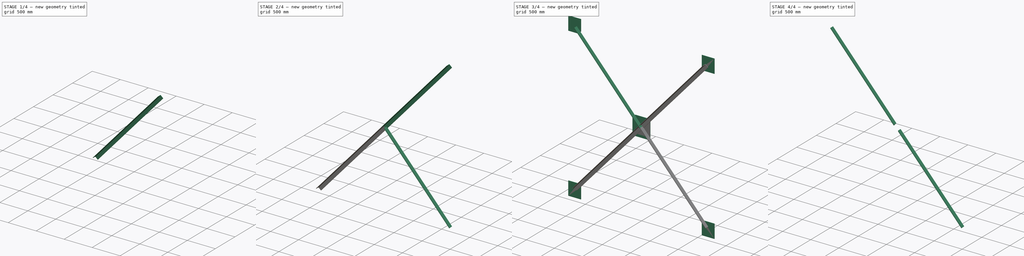
[diagram: build sequence overview — one tinted view per stage of 4, left to right]
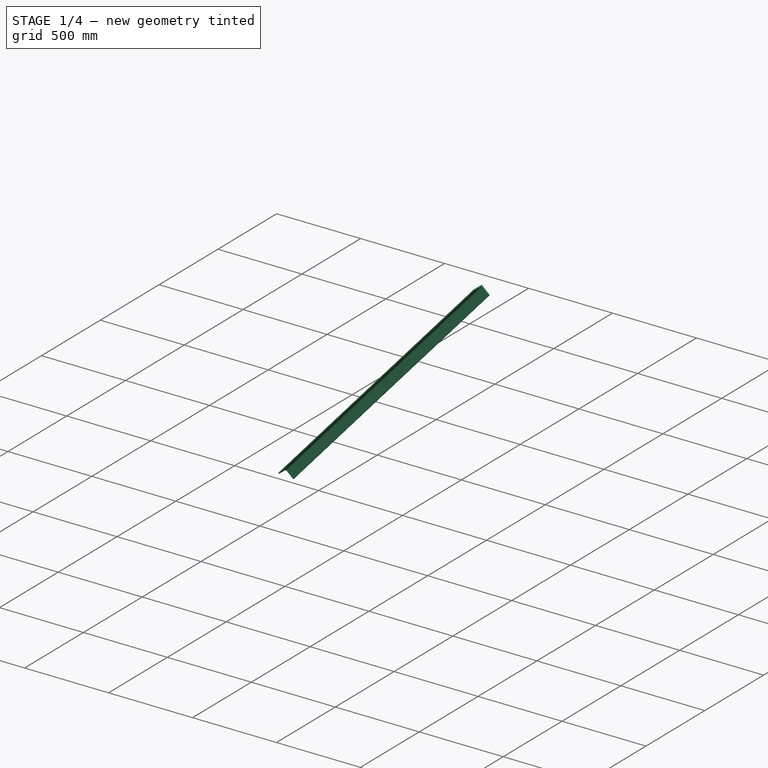
[diagram: stage 1 of 4 — iso view after this stage's code; geometry added in this stage tinted green]
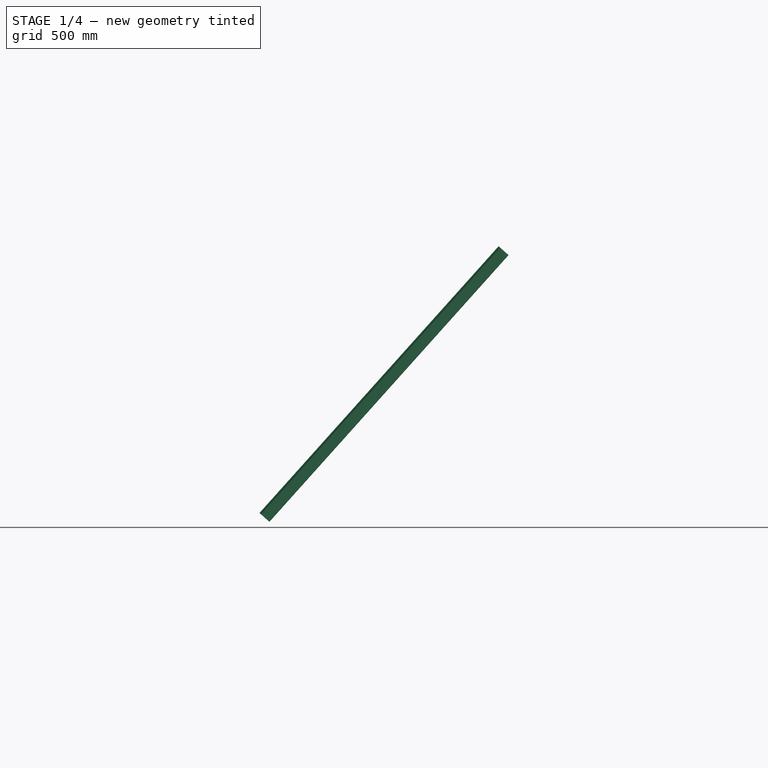
[diagram: stage 1 of 4 — front view after this stage's code; geometry added in this stage tinted green]
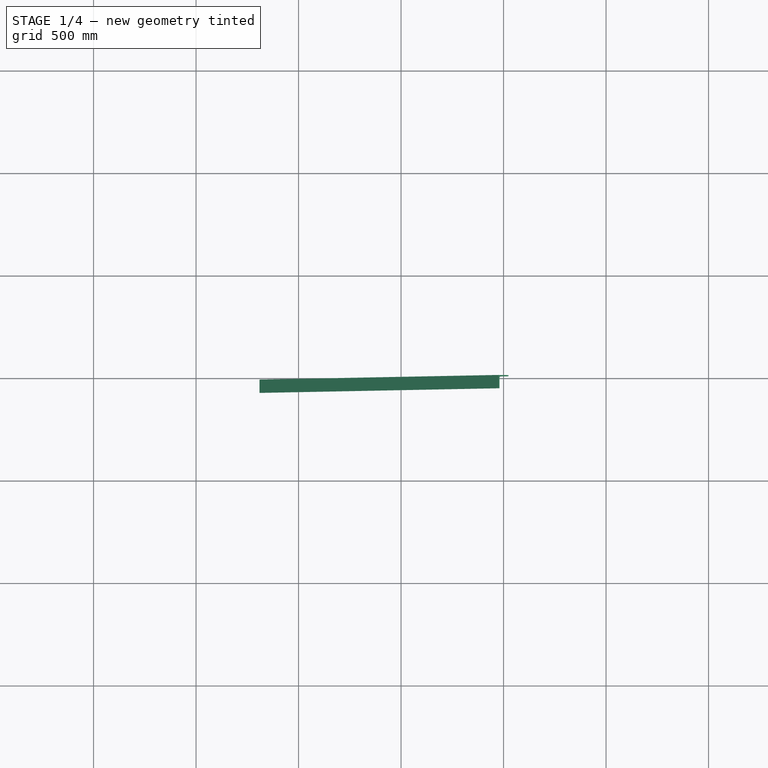
[diagram: stage 1 of 4 — top view after this stage's code; geometry added in this stage tinted green]
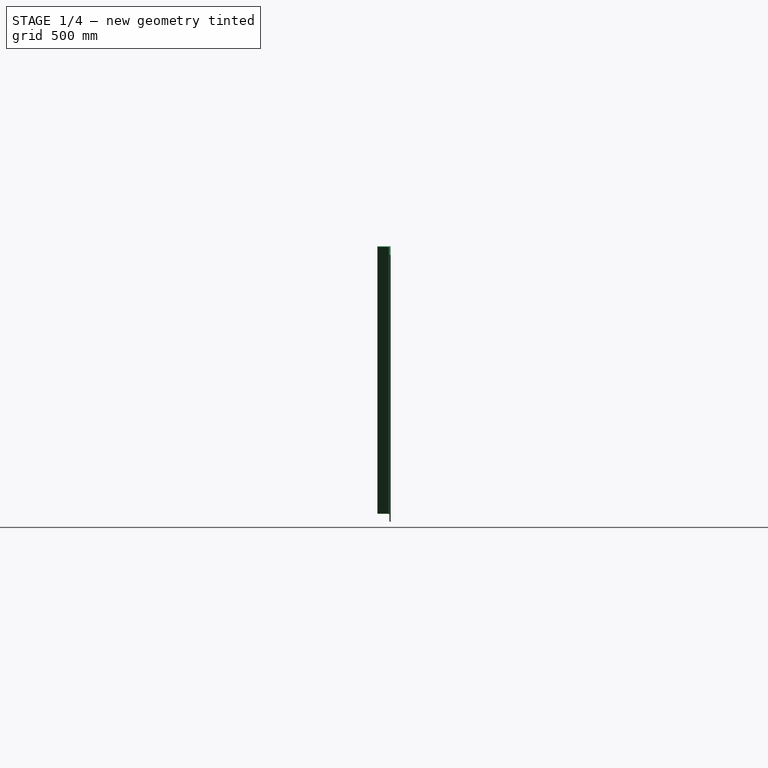
[diagram: stage 1 of 4 — right view after this stage's code; geometry added in this stage tinted green]
FCSTD DOCUMENT  (FreeCAD 0.21R33771 (Git))
Label: steelBrace
License: All rights reserved
LicenseURL: http://en.wikipedia.org/wiki/All_rights_reserved
objects: Sketcher::SketchObject×2, Part::Extrusion×2, Part::FeaturePython×2, Part::Mirroring×2, Part::MultiFuse×2, Spreadsheet::Sheet×1, Part::Cut×1
note: 11 computed .brp shape members not serialized (recipe doc carries the construction recipe); baked Part::Feature solids carry a one-line shape summary decoded from their .brp

FEATURE [Part::FeaturePython] AngleSteel001  # WARN: FeaturePython — macro-defined, semantics opaque (R4)
  A = 65
  B = 65
  L = 1747.43
  Placement = pos=(0,-38.5,0) rot=(0,1,0;0.730907rad)
  Solid = true
  g0 = 7.85
  mass = 10.3242
  sface = 1
  size = 8
  standard = SS_Equal
  t = 6
  expr: .Placement.Rotation.Angle = 90 ° - Spreadsheet.k0
  expr: L = Spreadsheet.C0 / 2 - Spreadsheet.La + 100
FEATURE [Part::Mirroring] Part__Mirroring  label="AngleSteel001 (Mirror #2)"
  Base = (0,0,0)
  Normal = (0,0,1)
  Placement = pos=(0,0,0) rot=(0,1,0;1.46181rad)
  Source = -> AngleSteel001
  expr: .Placement.Rotation.Angle = (90 ° - Spreadsheet.k0) * 2
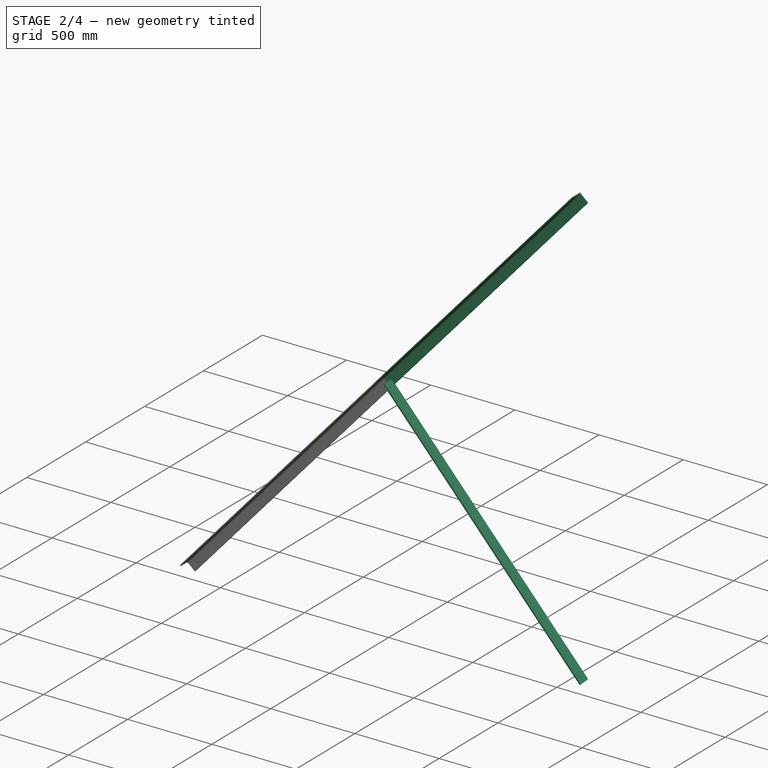
[diagram: stage 2 of 4 — iso view after this stage's code; geometry added in this stage tinted green]
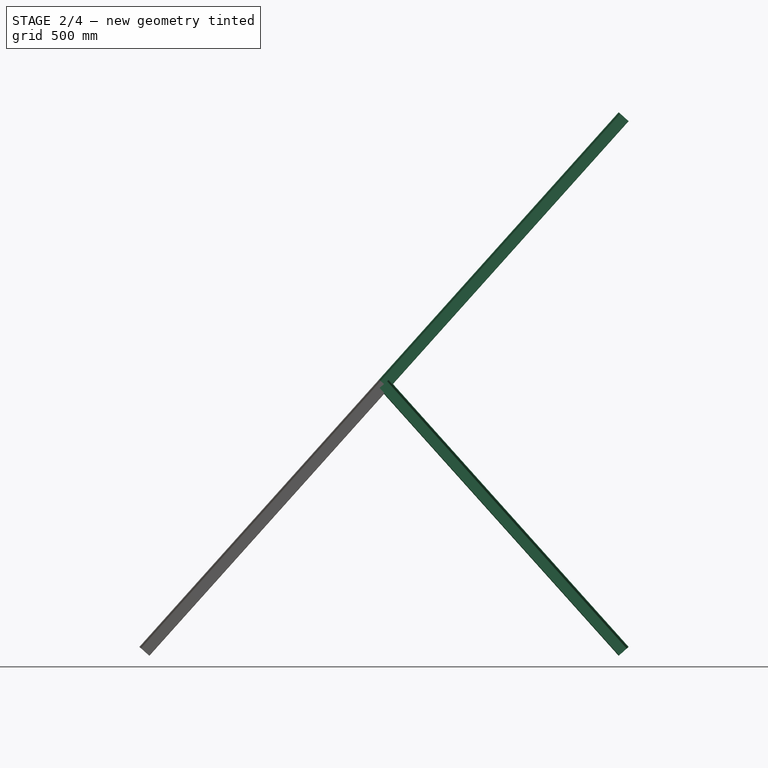
[diagram: stage 2 of 4 — front view after this stage's code; geometry added in this stage tinted green]
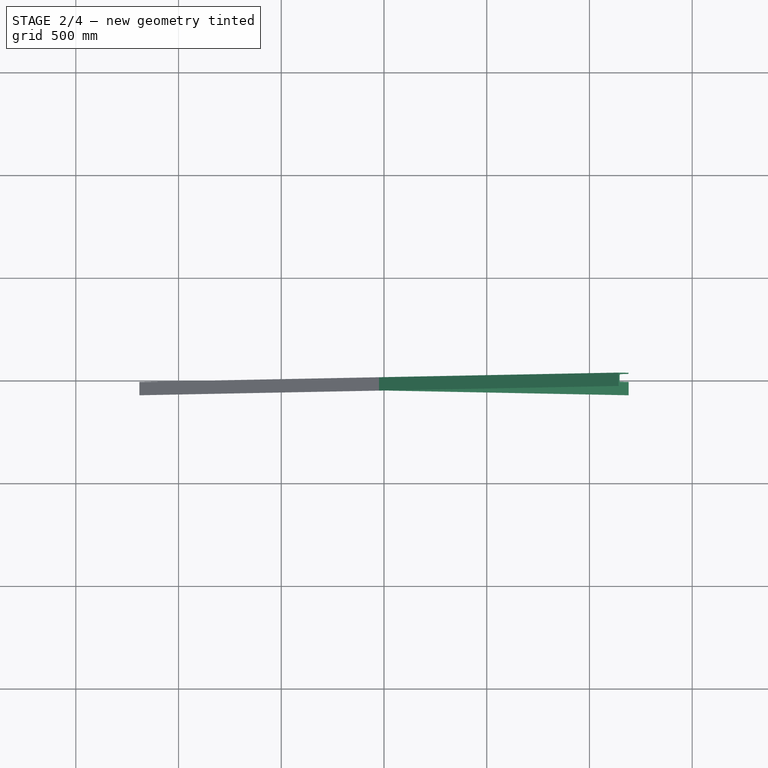
[diagram: stage 2 of 4 — top view after this stage's code; geometry added in this stage tinted green]
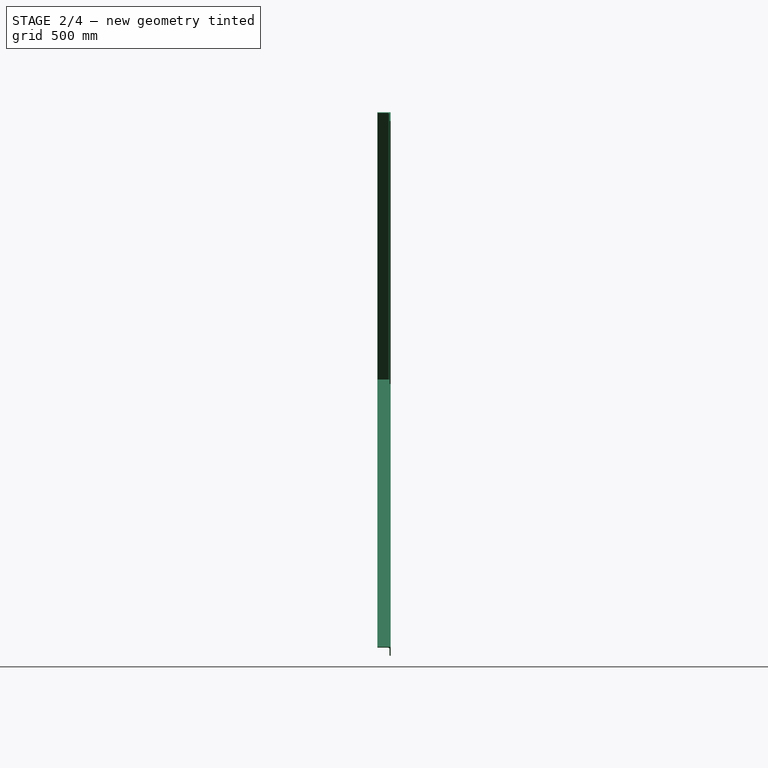
[diagram: stage 2 of 4 — right view after this stage's code; geometry added in this stage tinted green]
FEATURE [Spreadsheet::Sheet] Spreadsheet
  cells = A2='W0; B2(W0)=2600; A3='H0; B3(H0)=2900; A4='C0; B4(C0)==sqrt(W0 ^ 2 + H0 ^ 2); A5='La; B5(La)=300; A6='k0; B6(k0)==atan(H0 / W0); A11='B0; B11(B0)=75; A13='20x20x3; B13=20; A14='25x25x3; B14=25; A15='30x30x3; B15=30; A16='30x30x5; B16=30; A17='40x40x3; B17=40; A18='40x40x5; B18=40; A19='50x50x4; B19=50; A20='50x50x6; B20=50; A21='65x65x8; B21=65; A22='65x65x9; B22=65; A23='75x75x6; B23=75; A24='75x75x9; B24=75; A25='75x75x12; B25=75; A26='90x90x7; B26=90; A27='90x90x10; B27=90; A28='90x90x13; B28=90; A29='100x100x7; B29=100; A30='100x100x10; B30=100; A31='100x100x13; B31=100; A32='130x130x9; B32=130; A33='130x130x12; B33=130; A34='130x130x15; B34=130; A35='150x150x12; B35=150; A36='150x150x15; B36=150; A37='150x150x19; B37=150; A38='200x200x15; B38=200; A39='200x200x20; B39=200; A40='200x200x25; B40=200
FEATURE [Part::FeaturePython] AngleSteel  # WARN: FeaturePython — macro-defined, semantics opaque (R4)
  A = 65
  B = 65
  L = 1747.43
  Placement = pos=(0,-38.5,0) rot=(0,1,0;2.41069rad)
  Solid = true
  g0 = 7.85
  mass = 10.3242
  sface = 0
  size = 8
  standard = SS_Equal
  t = 6
  expr: .Placement.Rotation.Angle = Spreadsheet.k0 + 90 °
  expr: L = Spreadsheet.C0 / 2 - Spreadsheet.La + 100
FEATURE [Part::MultiFuse] Fusion001  label="beamA"
  Shapes = -> [Part__Mirroring,AngleSteel001]
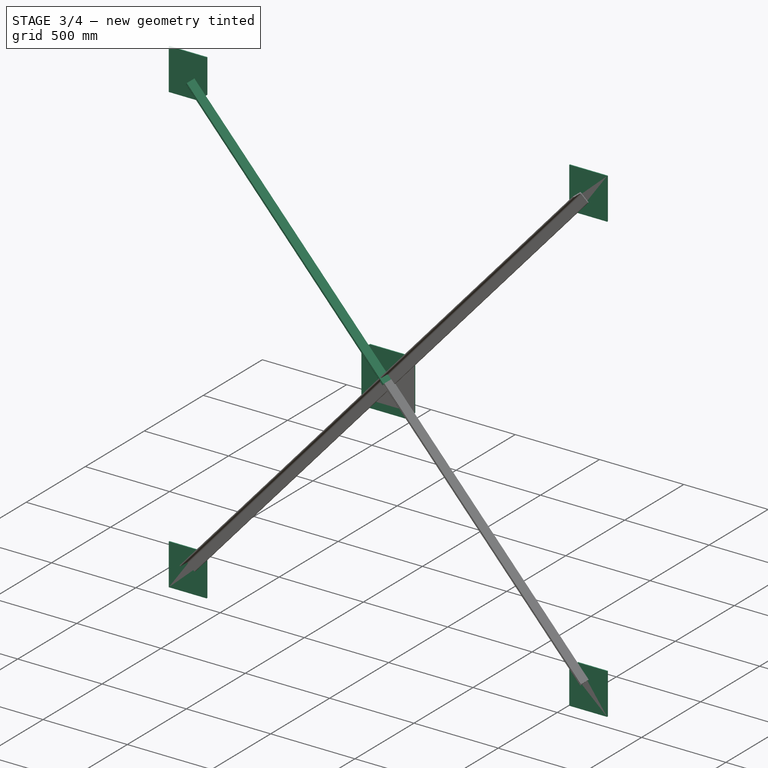
[diagram: stage 3 of 4 — iso view after this stage's code; geometry added in this stage tinted green]
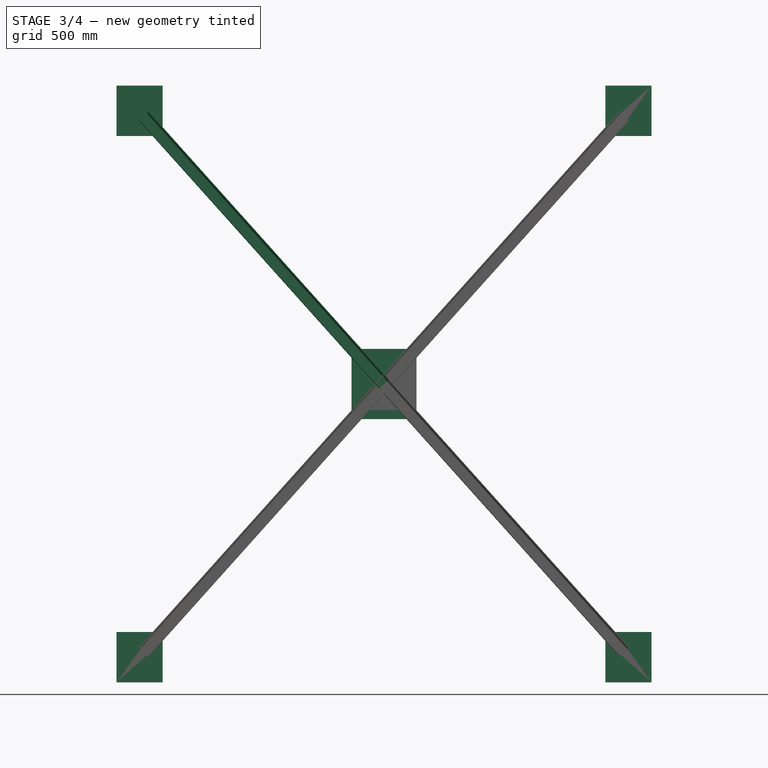
[diagram: stage 3 of 4 — front view after this stage's code; geometry added in this stage tinted green]
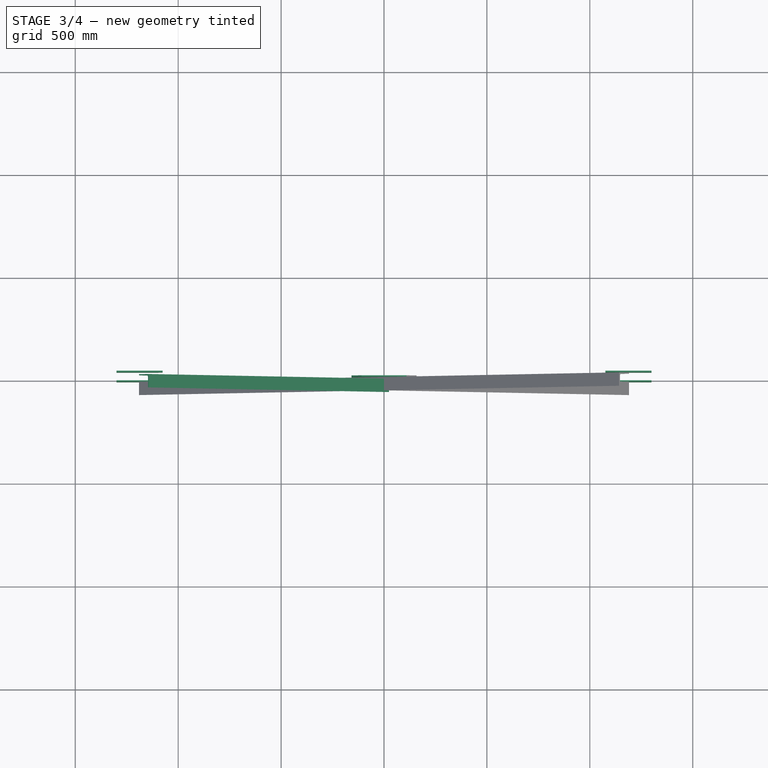
[diagram: stage 3 of 4 — top view after this stage's code; geometry added in this stage tinted green]
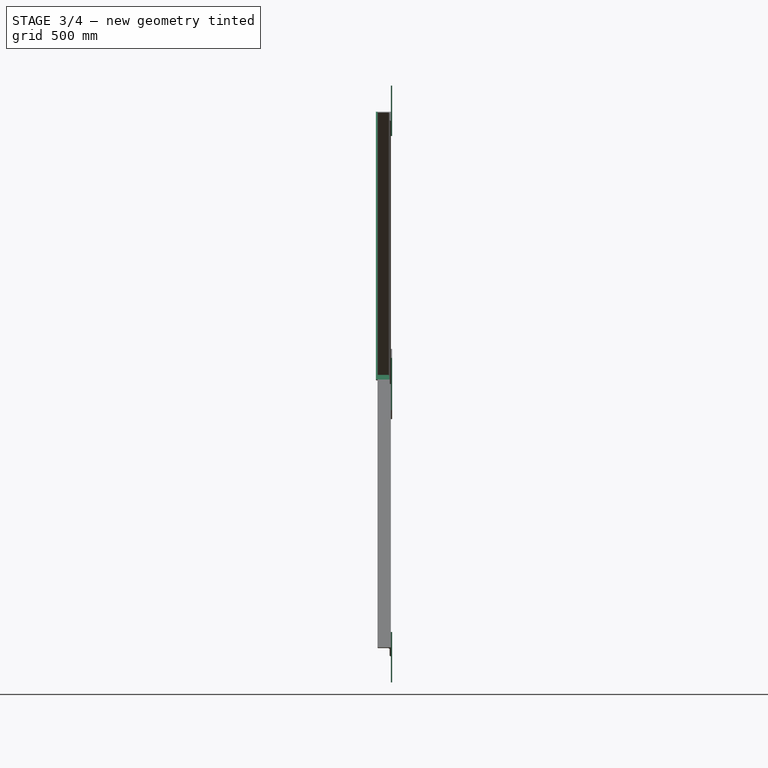
[diagram: stage 3 of 4 — right view after this stage's code; geometry added in this stage tinted green]
FEATURE [Sketcher::SketchObject] Sketch
  FullyConstrained = true
  MapMode = 5
  Placement = pos=(0,0,0) rot=(1,0,0;1.5708rad)
  expr: Constraints[10] = Spreadsheet.H0
  expr: Constraints[11] = Spreadsheet.W0
  expr: Constraints[27] = Spreadsheet.La
  expr: Constraints[40] = Spreadsheet.La
  expr: Constraints[62] = Spreadsheet.La
  expr: Constraints[67] = Spreadsheet.La
  sketch-geometry (36):
    g0: LineSegment StartX=-1300 StartY=-1450 StartZ=0 EndX=-1300 EndY=1450 EndZ=0
    g1: LineSegment StartX=-1300 StartY=1450 StartZ=0 EndX=1300 EndY=1450 EndZ=0
    g2: LineSegment StartX=1300 StartY=1450 StartZ=0 EndX=1300 EndY=-1450 EndZ=0
    g3: LineSegment StartX=1300 StartY=-1450 StartZ=0 EndX=-1300 EndY=-1450 EndZ=0
    g4: GeomPoint X=0 Y=0 Z=0
    g5: LineSegment StartX=-1300 StartY=-1450 StartZ=0 EndX=1300 EndY=1450 EndZ=0
    g6: LineSegment StartX=-1300 StartY=1450 StartZ=0 EndX=1300 EndY=-1450 EndZ=0
    g7: LineSegment StartX=-1300 StartY=1450 StartZ=0 EndX=-1075.54 EndY=1450 EndZ=0
    g8: LineSegment StartX=-1075.54 StartY=1450 StartZ=0 EndX=-1075.54 EndY=1248.32 EndZ=0
    g9: LineSegment StartX=-1075.54 StartY=1248.32 StartZ=0 EndX=-1123.94 EndY=1204.93 EndZ=0
    g10: LineSegment StartX=-1123.94 StartY=1204.93 StartZ=0 EndX=-1300 EndY=1204.93 EndZ=0
    g11: LineSegment StartX=-1300 StartY=1204.93 StartZ=0 EndX=-1300 EndY=1450 EndZ=0
    g12: LineSegment StartX=-1300 StartY=-1450 StartZ=0 EndX=-1075.54 EndY=-1450 EndZ=0
    g13: LineSegment StartX=-1075.54 StartY=-1450 StartZ=0 EndX=-1075.54 EndY=-1248.32 EndZ=0
    g14: LineSegment StartX=-1123.94 StartY=-1204.93 StartZ=0 EndX=-1300 EndY=-1204.93 EndZ=0
    g15: LineSegment StartX=-1300 StartY=-1204.93 StartZ=0 EndX=-1300 EndY=-1450 EndZ=0
    g16: LineSegment StartX=-1075.54 StartY=-1248.32 StartZ=0 EndX=-1123.94 EndY=-1204.93 EndZ=0
    g17: LineSegment StartX=1300 StartY=1450 StartZ=0 EndX=1075.54 EndY=1450 EndZ=0
    g18: LineSegment StartX=1075.54 StartY=1450 StartZ=0 EndX=1075.54 EndY=1248.32 EndZ=0
    g19: LineSegment StartX=1123.94 StartY=1204.93 StartZ=0 EndX=1300 EndY=1204.93 EndZ=0
    g20: LineSegment StartX=1300 StartY=1204.93 StartZ=0 EndX=1300 EndY=1450 EndZ=0
    g21: LineSegment StartX=1300 StartY=-1450 StartZ=0 EndX=1075.54 EndY=-1450 EndZ=0
    g22: LineSegment StartX=1075.54 StartY=-1450 StartZ=0 EndX=1075.54 EndY=-1248.32 EndZ=0
    g23: LineSegment StartX=1123.94 StartY=-1204.93 StartZ=0 EndX=1300 EndY=-1204.93 EndZ=0
    g24: LineSegment StartX=1300 StartY=-1204.93 StartZ=0 EndX=1300 EndY=-1450 EndZ=0
    g25: LineSegment StartX=1123.94 StartY=1204.93 StartZ=0 EndX=1075.54 EndY=1248.32 EndZ=0
    g26: LineSegment StartX=1075.54 StartY=-1248.32 StartZ=0 EndX=1123.94 EndY=-1204.93 EndZ=0
    g27: LineSegment StartX=-157.708 StartY=-127.219 StartZ=0 EndX=-157.708 EndY=127.219 EndZ=0
    g28: LineSegment StartX=-109.31 StartY=170.609 StartZ=0 EndX=109.31 EndY=170.609 EndZ=0
    g29: LineSegment StartX=157.708 StartY=127.219 StartZ=0 EndX=157.708 EndY=-127.219 EndZ=0
    g30: LineSegment StartX=109.31 StartY=-170.609 StartZ=0 EndX=-109.31 EndY=-170.609 EndZ=0
    g31: GeomPoint X=0 Y=0 Z=0
    g32: LineSegment StartX=157.708 StartY=127.219 StartZ=0 EndX=109.31 EndY=170.609 EndZ=0
    g33: LineSegment StartX=-109.31 StartY=170.609 StartZ=0 EndX=-157.708 EndY=127.219 EndZ=0
    g34: LineSegment StartX=-109.31 StartY=-170.609 StartZ=0 EndX=-157.708 EndY=-127.219 EndZ=0
    g35: LineSegment StartX=109.31 StartY=-170.609 StartZ=0 EndX=157.708 EndY=-127.219 EndZ=0
  constraints (90):
    c: Coincident(g0,g1)
    c: Coincident(g1,g2)
    c: Coincident(g2,g3)
    c: Coincident(g3,g0)
    c: Horizontal(g1)
    c: Horizontal(g3)
    c: Vertical(g0)
    c: Vertical(g2)
    c: Symmetric(g1,g0,g4)
    c: Coincident(g4,g-1)
    c: DistanceY(g2,g2) = 2900
    c: DistanceX(g1,g1) = 2600
    c: Coincident(g5,g0)
    c: Coincident(g5,g1)
    c: Coincident(g6,g0)
    c: Coincident(g6,g2)
    c: Coincident(g0,g7)
    c: PointOnObject(g7,g1)
    c: Coincident(g7,g8)
    c: Vertical(g8)
    c: Coincident(g8,g9)
    c: Coincident(g9,g10)
    c: PointOnObject(g10,g0)
    c: Horizontal(g10)
    c: Coincident(g10,g11)
    c: Coincident(g11,g7)
    c: Symmetric(g8,g9,g6)
    c: Distance(g7,g9) = 300
    c: Distance(g9) = 65
    c: Coincident(g12,g13)
    c: Coincident(g14,g15)
    c: Coincident(g15,g12)
    c: Horizontal(g12)
    c: Horizontal(g14)
    c: Vertical(g13)
    c: Vertical(g15)
    c: Coincident(g12,g0)
    c: Coincident(g13,g16)
    c: Coincident(g14,g16)
    c: Symmetric(g13,g14,g5)
    c: Distance(g12,g16) = 300
    c: Distance(g16) = 65
    c: Coincident(g17,g18)
    c: Coincident(g19,g20)
    c: Coincident(g20,g17)
    c: Horizontal(g17)
    c: Horizontal(g19)
    c: Vertical(g18)
    c: Vertical(g20)
    c: Coincident(g17,g1)
    c: Coincident(g21,g22)
    c: Coincident(g23,g24)
    c: Coincident(g24,g21)
    c: Horizontal(g21)
    c: Horizontal(g23)
    c: Vertical(g22)
    c: Vertical(g24)
    c: Coincident(g21,g2)
    c: Coincident(g19,g25)
    c: Coincident(g18,g25)
    c: Symmetric(g19,g18,g5)
    c: Distance(g25) = 65
    c: Distance(g17,g25) = 300
    c: Coincident(g23,g26)
    c: Coincident(g22,g26)
    c: Distance(g26) = 65
    c: Symmetric(g23,g22,g6)
    c: Distance(g21,g26) = 300
    c: Horizontal(g28)
    c: Horizontal(g30)
    c: Vertical(g27)
    c: Vertical(g29)
    c: Coincident(g31,g4)
    c: Coincident(g29,g32)
    c: Coincident(g28,g32)
    c: Coincident(g28,g33)
    c: Coincident(g27,g33)
    c: Coincident(g27,g34)
    c: Coincident(g30,g34)
    c: Coincident(g30,g35)
    c: Coincident(g29,g35)
    c: Perpendicular(g5,g34)
    c: Distance(g33) = 65
    c: Symmetric(g28,g27,g6)
    c: Equal(g33,g32)
    c: Equal(g35,g33)
    c: Equal(g33,g34)
    c: Symmetric(g29,g28,g5)
    c: Symmetric(g29,g30,g6)
    c: Distance(g4,g32) = 200
FEATURE [Part::Extrusion] Extrude  label="GPL"
  Base = -> Sketch
  Dir = (0,-1,2e-16)
  DirMode = 2
  FaceMakerClass = Part::FaceMakerBullseye
  LengthFwd = 6
  LengthRev = 0
  Solid = true
  Symmetric = false
FEATURE [Part::Mirroring] Part__Mirroring001  label="AngleSteel (Mirror #2)"
  Base = (0,0,0)
  Normal = (1,0,0)
  Placement = pos=(0,-8,0) rot=(0,1,0;1.67978rad)
  Source = -> AngleSteel
  expr: .Placement.Rotation.Angle = Spreadsheet.k0 * 2
FEATURE [Part::MultiFuse] Fusion  label="beam_b"
  Refine = true
  Shapes = -> [Part__Mirroring001,AngleSteel]
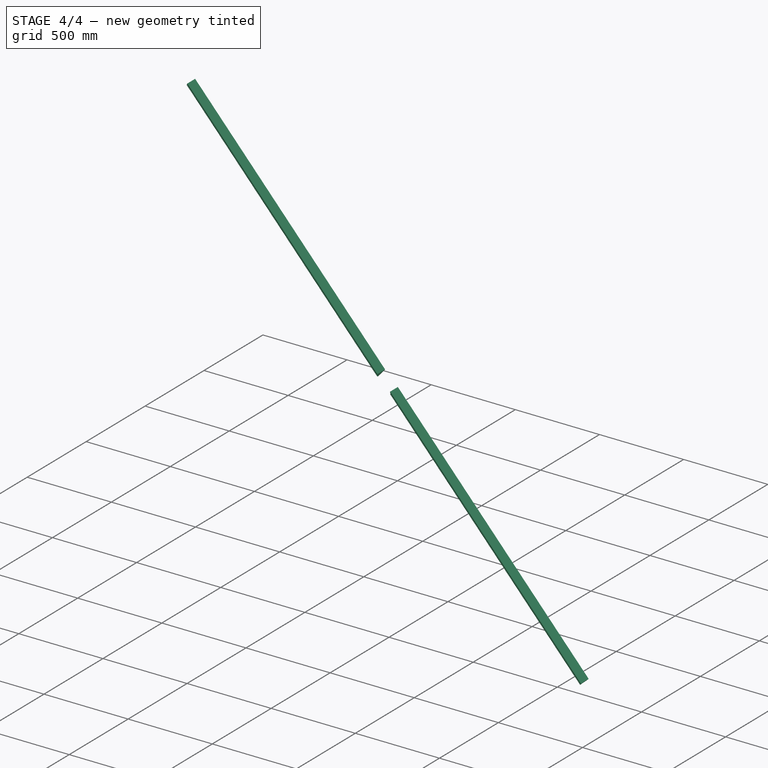
[diagram: stage 4 of 4 — iso view after this stage's code; geometry added in this stage tinted green]
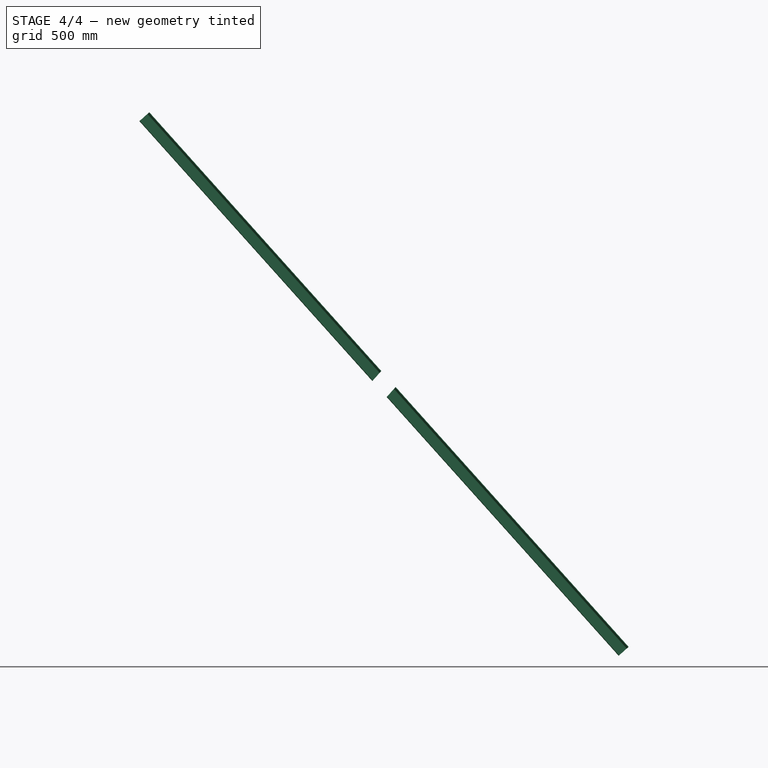
[diagram: stage 4 of 4 — front view after this stage's code; geometry added in this stage tinted green]
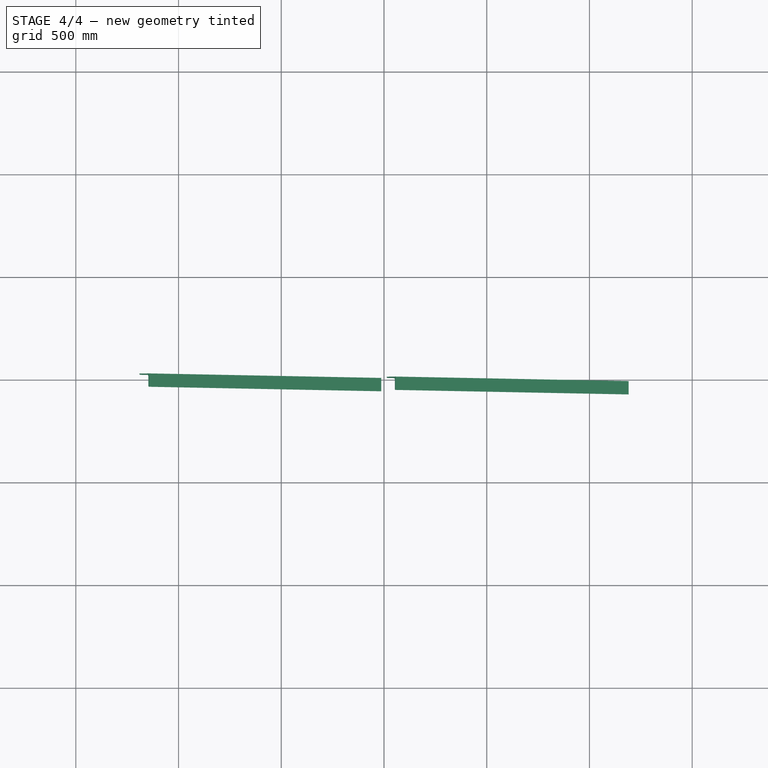
[diagram: stage 4 of 4 — top view after this stage's code; geometry added in this stage tinted green]
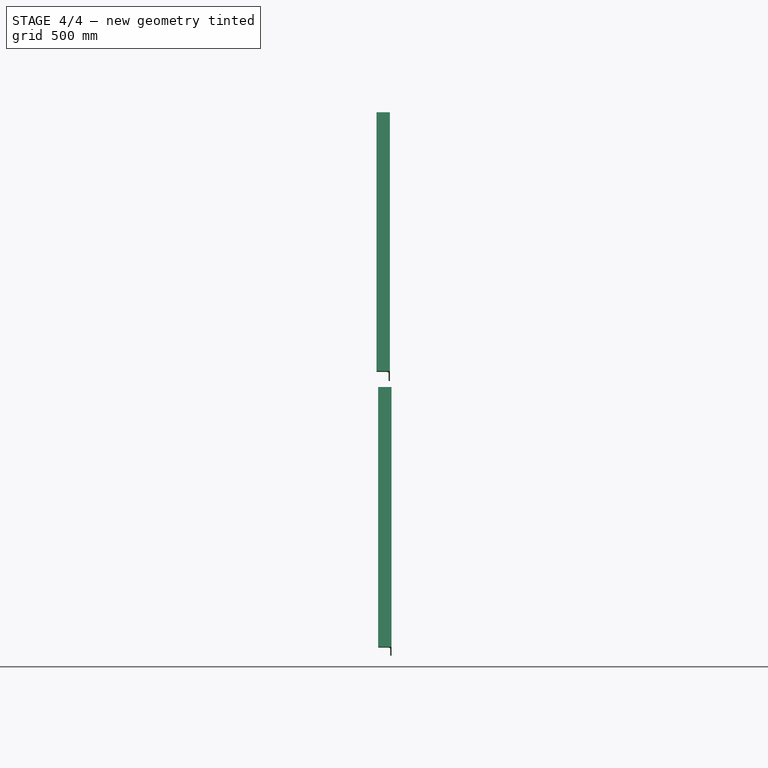
[diagram: stage 4 of 4 — right view after this stage's code; geometry added in this stage tinted green]
FEATURE [Sketcher::SketchObject] Sketch001
  ExternalGeometry = -> [Extrude,Fusion001,Fusion]
  FullyConstrained = true
  MapMode = 5
  Placement = pos=(0,-6,1.3e-15) rot=(1,0,0;1.5708rad)
  Support = -> [Extrude]
  sketch-geometry (4):
    g0: LineSegment StartX=0 StartY=77.8974 StartZ=0 EndX=-69.839 EndY=0 EndZ=0
    g1: LineSegment StartX=-69.839 StartY=0 StartZ=0 EndX=-1.9469e-12 EndY=-77.8974 EndZ=0
    g2: LineSegment StartX=-1.9469e-12 StartY=-77.8974 StartZ=0 EndX=69.839 EndY=0 EndZ=0
    g3: LineSegment StartX=69.839 StartY=0 StartZ=0 EndX=0 EndY=77.8974 EndZ=0
  constraints (12):
    c: PointOnObject(g0,g-2)
    c: PointOnObject(g0,g-1)
    c: Coincident(g0,g1)
    c: Coincident(g1,g2)
    c: PointOnObject(g2,g-1)
    c: Coincident(g2,g3)
    c: Coincident(g3,g0)
    c: Parallel(g-4,g0)
    c: Parallel(g0,g2)
    c: Parallel(g-5,g3)
    c: Parallel(g3,g1)
    c: Distance(g-1,g0) = 52
FEATURE [Part::Extrusion] Extrude001
  Base = -> Sketch001
  Dir = (0,-1,2e-16)
  DirMode = 2
  FaceMakerClass = Part::FaceMakerBullseye
  LengthFwd = 100
  LengthRev = 0
  Solid = true
  Symmetric = false
FEATURE [Part::Cut] Cut  label="beamB"
  Base = -> Fusion
  Tool = -> Extrude001
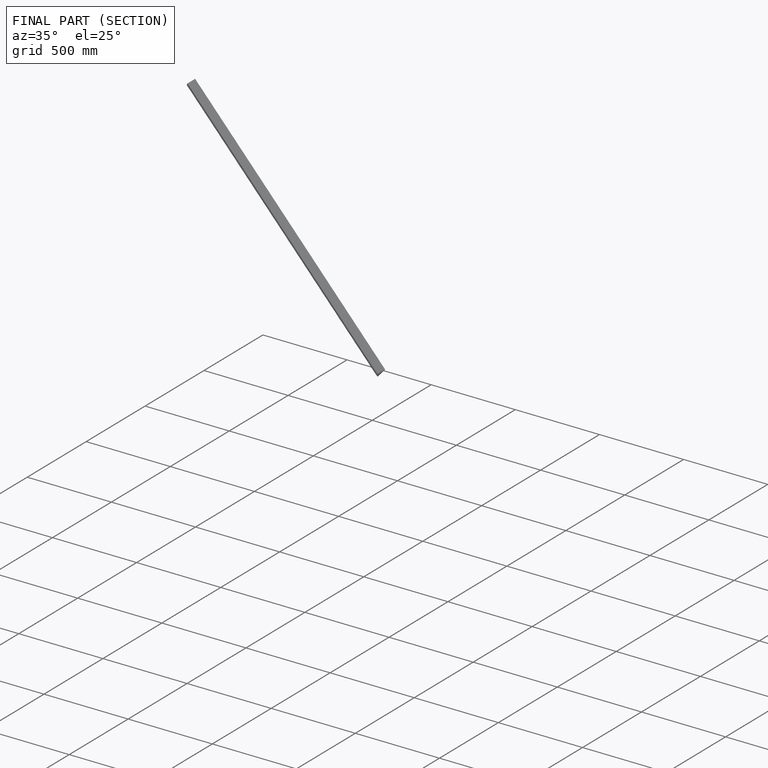
[diagram: finished part — half-section view (interior)]
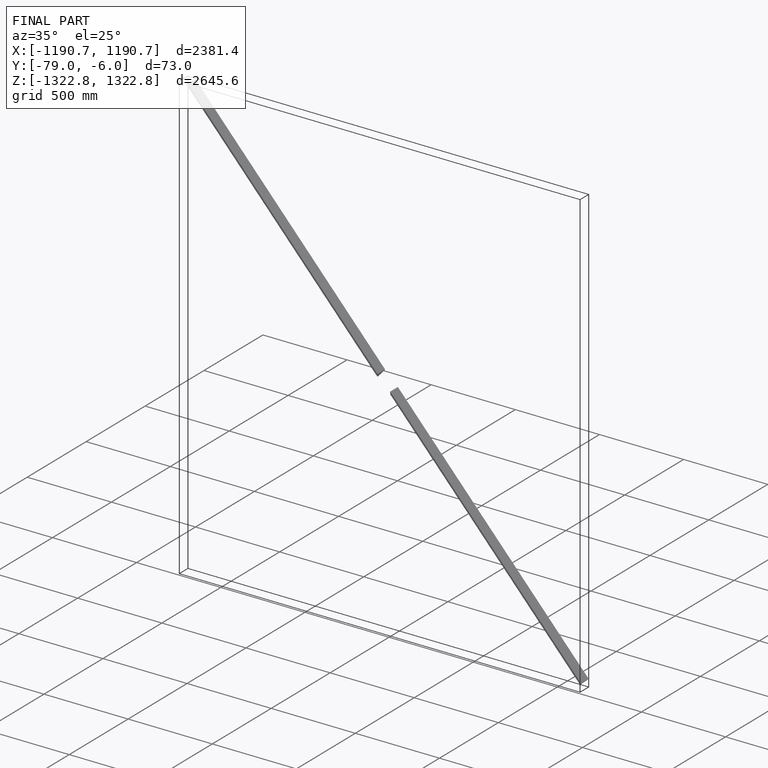
[diagram: finished part — iso view with bounding-box wireframe]
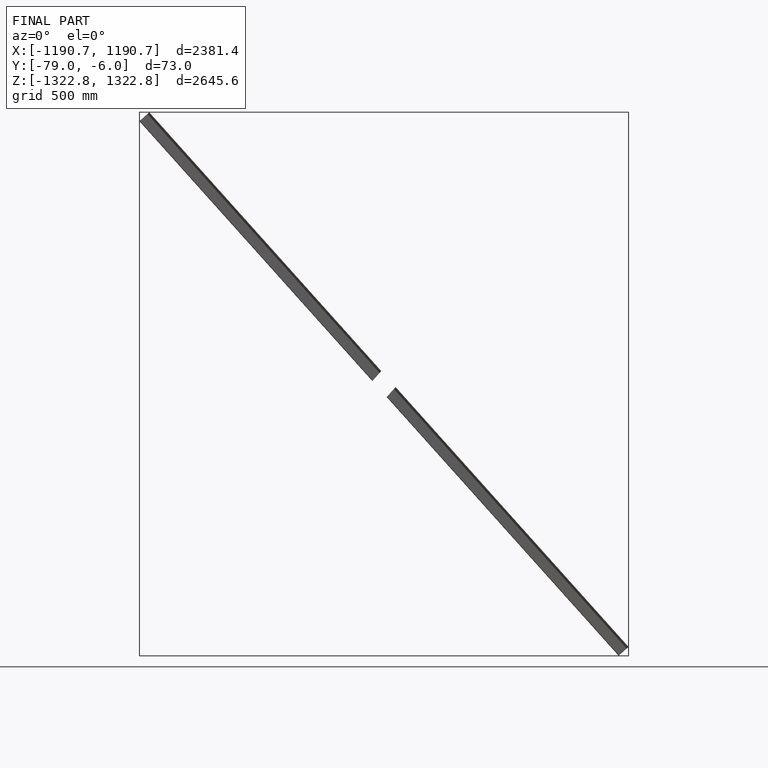
[diagram: finished part — front view with bounding-box wireframe]
